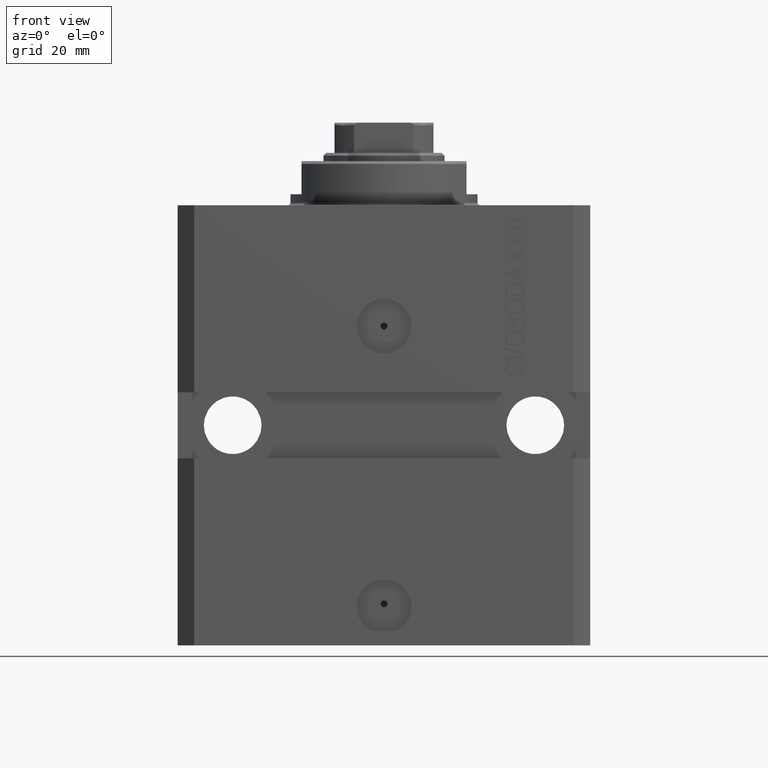
[diagram: clean part render]
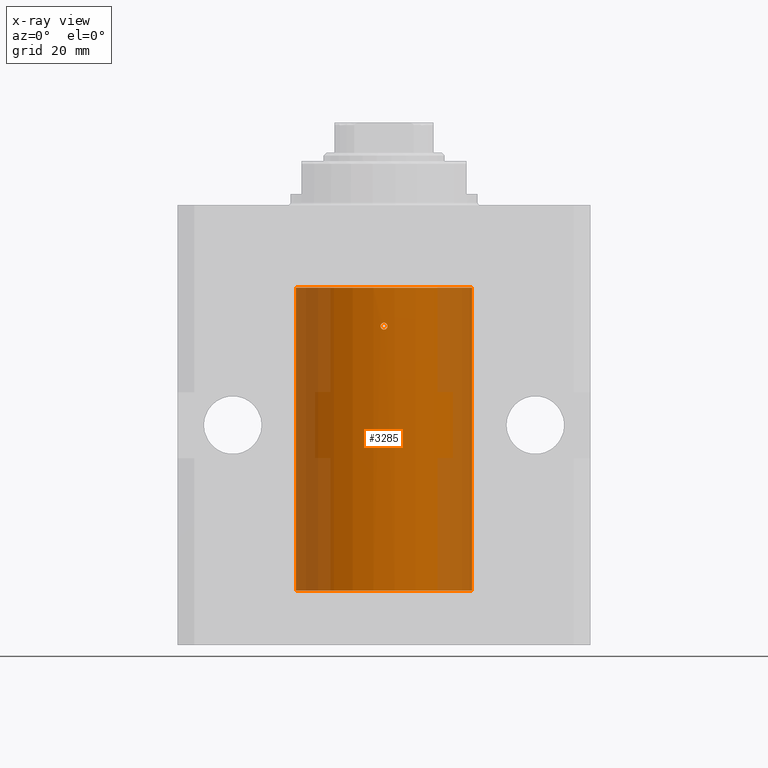
[diagram: x-ray — body ghosted, one internal face saturated and labeled with its STEP entity id]
A machine part, front view, then the same camera in x-ray: the body is ghosted and one INTERNAL B-rep face — a face not visible from any outside direction — is saturated and labeled: STEP entity #3285.
In plain terms, the highlighted cylindrical surface (partial cylindrical patch) has radius 16 mm, axis along (0, 0, 1).
Its self-contained STEP definition (entity closure, byte-faithful):
#678 = VERTEX_POINT ( 'NONE', #18303 ) ;
#1320 = CARTESIAN_POINT ( 'NONE',  ( 0.3261757727946463237, -15.99709188868944665, -22.55754407379585302 ) ) ;
#1955 = CARTESIAN_POINT ( 'NONE',  ( -15.99707459521409625, -0.3269651631532068392, -67.44291848928558863 ) ) ;
#2069 = VERTEX_POINT ( 'NONE', #34718 ) ;
#2250 = CARTESIAN_POINT ( 'NONE',  ( 0.6250000000000021094, -15.98778830858102040, -22.00000000000000000 ) ) ;
#2460 = CARTESIAN_POINT ( 'NONE',  ( 0.6250000000000021094, -15.98778830858102040, -21.91740113885281005 ) ) ;
#2680 = CARTESIAN_POINT ( 'NONE',  ( -0.5585615262064566044, -15.99067364047694184, -21.67462402876256533 ) ) ;
#2743 = VECTOR ( 'NONE', #17570, 1000.000000000000000 ) ;
#2825 = CARTESIAN_POINT ( 'NONE',  ( -15.99069874693027948, -0.5575440858643384567, -67.67382425011452085 ) ) ;
#3285 = ADVANCED_FACE ( 'NONE', ( #15114, #42932 ), #26191, .F. ) ;
#3348 = CARTESIAN_POINT ( 'NONE',  ( -16.00000000000000000, 1.643679961284177128E-16, -21.37499999999999645 ) ) ;
#4188 = DIRECTION ( 'NONE',  ( -0.000000000000000000, -0.000000000000000000, 1.000000000000000000 ) ) ;
#4446 = VERTEX_POINT ( 'NONE', #22204 ) ;
#4528 = B_SPLINE_CURVE_WITH_KNOTS ( 'NONE', 3,
 ( #2250, #2460, #29411, #33188, #9575, #22285, #18925, #39673, #32540, #12263, #9139, #2680, #36760, #22729 ),
 .UNSPECIFIED., .F., .F.,
 ( 4, 2, 2, 2, 2, 2, 4 ),
 ( 0.000000000000000000, 0.0002442776641353475663, 0.0004885553282706951326, 0.0009771106565413974210, 0.001221388320676748511, 0.001465665984812099818, 0.001954221313082809587 ),
 .UNSPECIFIED. ) ;
#4533 = CARTESIAN_POINT ( 'NONE',  ( 16.00000000000000000, 0.000000000000000000, -70.09999999999999432 ) ) ;
#4647 = CARTESIAN_POINT ( 'NONE',  ( 0.1643567559725035987, -16.00000534779674055, -22.62513690364380281 ) ) ;
#4652 = DIRECTION ( 'NONE',  ( -0.000000000000000000, -0.000000000000000000, 1.000000000000000000 ) ) ;
#4741 = CARTESIAN_POINT ( 'NONE',  ( 16.00000000000000000, 0.000000000000000000, -15.00000000000000000 ) ) ;
#5601 = AXIS2_PLACEMENT_3D ( 'NONE', #7344, #20908, #10458 ) ;
#6154 = AXIS2_PLACEMENT_3D ( 'NONE', #35403, #4652, #9263 ) ;
#6472 = LINE ( 'NONE', #34090, #2743 ) ;
#6477 = CARTESIAN_POINT ( 'NONE',  ( -16.00000000000000355, -0.1651602165840159453, -21.37500000000000000 ) ) ;
#6494 = VECTOR ( 'NONE', #4188, 1000.000000000000000 ) ;
#7236 = B_SPLINE_CURVE_WITH_KNOTS ( 'NONE', 3,
 ( #28989, #42601, #25647, #40137, #33653, #23399, #23629, #43695, #6477, #3348 ),
 .UNSPECIFIED., .F., .F.,
 ( 4, 2, 2, 2, 4 ),
 ( 0.001954221322144767369, 0.002442665739568257877, 0.002931110156991748386, 0.003419554574415238895, 0.003907998991838729404 ),
 .UNSPECIFIED. ) ;
#7344 = CARTESIAN_POINT ( 'NONE',  ( 0.000000000000000000, 0.000000000000000000, -15.00000000000000000 ) ) ;
#7736 = CIRCLE ( 'NONE', #5601, 16.00000000000000000 ) ;
#8973 = CARTESIAN_POINT ( 'NONE',  ( -16.00000000000013145, 3.685127046438747128E-13, -68.62500000000343903 ) ) ;
#9139 = CARTESIAN_POINT ( 'NONE',  ( -0.3834783201270309250, -15.99551040109984257, -21.49962188967067434 ) ) ;
#9263 = DIRECTION ( 'NONE',  ( 1.000000000000000000, 0.000000000000000000, 0.000000000000000000 ) ) ;
#9289 = CARTESIAN_POINT ( 'NONE',  ( -16.00000000000013145, 3.685127046438747128E-13, -68.62500000000343903 ) ) ;
#9337 = CARTESIAN_POINT ( 'NONE',  ( -16.00000000000000000, 1.643679961284177128E-16, -21.37499999999999645 ) ) ;
#9575 = CARTESIAN_POINT ( 'NONE',  ( 0.4995337308757450412, -15.99230423105821330, -21.61562946359011761 ) ) ;
#10086 = VECTOR ( 'NONE', #43295, 1000.000000000000000 ) ;
#10189 = EDGE_CURVE ( 'NONE', #39751, #22757, #4528, .T. ) ;
#10458 = DIRECTION ( 'NONE',  ( 1.000000000000000000, 0.000000000000000000, 0.000000000000000000 ) ) ;
#10553 = EDGE_CURVE ( 'NONE', #32946, #41729, #34010, .T. ) ;
#11484 = ORIENTED_EDGE ( 'NONE', *, *, #19938, .T. ) ;
#11544 = LINE ( 'NONE', #14206, #6494 ) ;
#11570 = CARTESIAN_POINT ( 'NONE',  ( 0.6250000000000021094, -15.98778830858102040, -22.16516021842175732 ) ) ;
#12263 = CARTESIAN_POINT ( 'NONE',  ( -0.3146006623915328371, -15.99708581762410198, -21.45377794364939206 ) ) ;
#12443 = EDGE_CURVE ( 'NONE', #22757, #39751, #38581, .T. ) ;
#12594 = ORIENTED_EDGE ( 'NONE', *, *, #21507, .T. ) ;
#12891 = ORIENTED_EDGE ( 'NONE', *, *, #13093, .F. ) ;
#13093 = EDGE_CURVE ( 'NONE', #41729, #23351, #6472, .T. ) ;
#13378 = CARTESIAN_POINT ( 'NONE',  ( -0.6250000000034292569, -15.98778830858088540, -21.99999999999968026 ) ) ;
#14206 = CARTESIAN_POINT ( 'NONE',  ( -16.00000000000000000, 1.959434878635765131E-15, -70.09999999999999432 ) ) ;
#14884 = CARTESIAN_POINT ( 'NONE',  ( 0.5570815292660692419, -15.99071604712191963, -22.32696513381955583 ) ) ;
#15114 = FACE_BOUND ( 'NONE', #31834, .T. ) ;
#15156 = EDGE_CURVE ( 'NONE', #4446, #2069, #41658, .T. ) ;
#16396 = CARTESIAN_POINT ( 'NONE',  ( -16.00000000000000000, -0.1651602165840247993, -67.37500000000001421 ) ) ;
#17416 = EDGE_LOOP ( 'NONE', ( #21427, #12594, #22743, #20488, #41515, #11484, #26797, #12891 ) ) ;
#17570 = DIRECTION ( 'NONE',  ( -0.000000000000000000, -0.000000000000000000, 1.000000000000000000 ) ) ;
#18303 = CARTESIAN_POINT ( 'NONE',  ( -16.00000000000000000, 1.959434878635765131E-15, -15.00000000000000000 ) ) ;
#18451 = CARTESIAN_POINT ( 'NONE',  ( -16.00000000000000000, 1.959434878635765131E-15, -70.09999999999999432 ) ) ;
#18925 = CARTESIAN_POINT ( 'NONE',  ( 0.1632985437550950880, -15.99999773299415651, -21.37505803535338700 ) ) ;
#19938 = EDGE_CURVE ( 'NONE', #27938, #678, #11544, .T. ) ;
#20488 = ORIENTED_EDGE ( 'NONE', *, *, #15156, .T. ) ;
#20876 = CARTESIAN_POINT ( 'NONE',  ( 0.6250000000000021094, -15.98778830858102040, -22.00000000000000000 ) ) ;
#20908 = DIRECTION ( 'NONE',  ( 0.000000000000000000, 0.000000000000000000, 1.000000000000000000 ) ) ;
#21427 = ORIENTED_EDGE ( 'NONE', *, *, #10553, .F. ) ;
#21507 = EDGE_CURVE ( 'NONE', #32946, #34211, #38842, .T. ) ;
#21570 = CARTESIAN_POINT ( 'NONE',  ( -0.5574097071831423111, -15.99070247867880745, -22.32631147718825915 ) ) ;
#22204 = CARTESIAN_POINT ( 'NONE',  ( -16.00000000000000000, -9.346608026143465119E-15, -67.37500000000000000 ) ) ;
#22285 = CARTESIAN_POINT ( 'NONE',  ( 0.3265185412710907009, -15.99708410649345147, -21.44267668954472228 ) ) ;
#22729 = CARTESIAN_POINT ( 'NONE',  ( -0.6250000000034292569, -15.98778830858088540, -21.99999999999968026 ) ) ;
#22743 = ORIENTED_EDGE ( 'NONE', *, *, #22949, .T. ) ;
#22757 = VERTEX_POINT ( 'NONE', #13378 ) ;
#22949 = EDGE_CURVE ( 'NONE', #34211, #4446, #34987, .T. ) ;
#23351 = VERTEX_POINT ( 'NONE', #4741 ) ;
#23399 = CARTESIAN_POINT ( 'NONE',  ( -15.98778295664475557, -0.6251369050462041166, -21.83564325457866317 ) ) ;
#23629 = CARTESIAN_POINT ( 'NONE',  ( -15.99069874693028304, -0.5575440858643239128, -21.67382425011450309 ) ) ;
#25601 = ORIENTED_EDGE ( 'NONE', *, *, #10189, .T. ) ;
#25647 = CARTESIAN_POINT ( 'NONE',  ( -15.99708815688950381, -0.3263115027449041694, -22.55740969198224022 ) ) ;
#26191 = CYLINDRICAL_SURFACE ( 'NONE', #6154, 16.00000000000000000 ) ;
#26241 = DIRECTION ( 'NONE',  ( 0.000000000000000000, 0.000000000000000000, 1.000000000000000000 ) ) ;
#26797 = ORIENTED_EDGE ( 'NONE', *, *, #33632, .T. ) ;
#27938 = VERTEX_POINT ( 'NONE', #9337 ) ;
#28989 = CARTESIAN_POINT ( 'NONE',  ( -16.00000000000013145, 3.685127034031037939E-13, -22.62500000000341771 ) ) ;
#29150 = CARTESIAN_POINT ( 'NONE',  ( 0.6250000000000021094, -15.98778830858102040, -22.00000000000000000 ) ) ;
#29411 = CARTESIAN_POINT ( 'NONE',  ( 0.6087347191286167636, -15.98844670280648650, -21.83635021790516717 ) ) ;
#29572 = CARTESIAN_POINT ( 'NONE',  ( 0.000000000000000000, 0.000000000000000000, -70.09999999999999432 ) ) ;
#31822 = CARTESIAN_POINT ( 'NONE',  ( -0.6250000000034292569, -15.98778830858088540, -21.99999999999968026 ) ) ;
#31834 = EDGE_LOOP ( 'NONE', ( #25601, #41395 ) ) ;
#32462 = CARTESIAN_POINT ( 'NONE',  ( -15.99071965633095793, -0.5569502390237154321, -68.32709508218684391 ) ) ;
#32540 = CARTESIAN_POINT ( 'NONE',  ( -0.1632473553834393187, -15.99934619083441945, -21.39116306568885761 ) ) ;
#32683 = CARTESIAN_POINT ( 'NONE',  ( -15.99708815688950381, -0.3263115027449093875, -68.55740969198227219 ) ) ;
#32927 = DIRECTION ( 'NONE',  ( 1.000000000000000000, 0.000000000000000000, 0.000000000000000000 ) ) ;
#32946 = VERTEX_POINT ( 'NONE', #35387 ) ;
#33020 = CARTESIAN_POINT ( 'NONE',  ( -16.00000000000000000, 1.959434878635765131E-15, -70.09999999999999432 ) ) ;
#33188 = CARTESIAN_POINT ( 'NONE',  ( 0.5459766766732054855, -15.99071278571675236, -21.68496241814481351 ) ) ;
#33348 = CARTESIAN_POINT ( 'NONE',  ( -15.98779367741636648, -0.6248626626677356022, -68.16539631985038739 ) ) ;
#33632 = EDGE_CURVE ( 'NONE', #678, #23351, #7736, .T. ) ;
#33653 = CARTESIAN_POINT ( 'NONE',  ( -15.98779367741636648, -0.6248626626677216134, -22.16539631985037317 ) ) ;
#34010 = CIRCLE ( 'NONE', #39671, 16.00000000000000000 ) ;
#34090 = CARTESIAN_POINT ( 'NONE',  ( 16.00000000000000000, 0.000000000000000000, -70.09999999999999432 ) ) ;
#34211 = VERTEX_POINT ( 'NONE', #8973 ) ;
#34718 = CARTESIAN_POINT ( 'NONE',  ( -16.00000000000013145, 3.685127034031037939E-13, -22.62500000000341771 ) ) ;
#34965 = DIRECTION ( 'NONE',  ( -0.000000000000000000, -0.000000000000000000, 1.000000000000000000 ) ) ;
#34987 = B_SPLINE_CURVE_WITH_KNOTS ( 'NONE', 3,
 ( #9289, #35822, #32683, #32462, #33348, #36258, #2825, #1955, #16396, #42732 ),
 .UNSPECIFIED., .F., .F.,
 ( 4, 2, 2, 2, 4 ),
 ( 0.001954221322144763465, 0.002442665739568257010, 0.002931110156991750121, 0.003419554574415243665, 0.003907998991838737210 ),
 .UNSPECIFIED. ) ;
#35175 = CARTESIAN_POINT ( 'NONE',  ( -0.1653963197027899790, -15.99999463531743693, -22.62486266407902491 ) ) ;
#35387 = CARTESIAN_POINT ( 'NONE',  ( -16.00000000000000000, 1.959434878635765131E-15, -70.09999999999999432 ) ) ;
#35403 = CARTESIAN_POINT ( 'NONE',  ( 0.000000000000000000, 0.000000000000000000, -70.09999999999999432 ) ) ;
#35822 = CARTESIAN_POINT ( 'NONE',  ( -16.00000000000000711, -0.1631344205875859821, -68.62500000000014211 ) ) ;
#36258 = CARTESIAN_POINT ( 'NONE',  ( -15.98778295664474491, -0.6251369050462197707, -67.83564325457867028 ) ) ;
#36760 = CARTESIAN_POINT ( 'NONE',  ( -0.6249999999998588907, -15.98778830858102395, -21.83682853524270584 ) ) ;
#38529 = CARTESIAN_POINT ( 'NONE',  ( -0.6250000000001376677, -15.98778830858101685, -22.16313442089298746 ) ) ;
#38581 = B_SPLINE_CURVE_WITH_KNOTS ( 'NONE', 3,
 ( #31822, #38529, #21570, #42106, #35175, #4647, #1320, #14884, #11570, #29150 ),
 .UNSPECIFIED., .F., .F.,
 ( 4, 2, 2, 2, 4 ),
 ( 0.001954221313082809587, 0.002442665727494955450, 0.002931110141907101313, 0.003419554556319247176, 0.003907998970731393039 ),
 .UNSPECIFIED. ) ;
#38842 = LINE ( 'NONE', #33020, #10086 ) ;
#39234 = EDGE_CURVE ( 'NONE', #2069, #27938, #7236, .T. ) ;
#39671 = AXIS2_PLACEMENT_3D ( 'NONE', #29572, #26241, #32927 ) ;
#39673 = CARTESIAN_POINT ( 'NONE',  ( -0.08131586293866366333, -16.00000113118705514, -21.37497104160945582 ) ) ;
#39751 = VERTEX_POINT ( 'NONE', #20876 ) ;
#40137 = CARTESIAN_POINT ( 'NONE',  ( -15.99071965633096148, -0.5569502390237042189, -22.32709508218684036 ) ) ;
#41246 = VECTOR ( 'NONE', #34965, 1000.000000000000000 ) ;
#41395 = ORIENTED_EDGE ( 'NONE', *, *, #12443, .T. ) ;
#41515 = ORIENTED_EDGE ( 'NONE', *, *, #39234, .T. ) ;
#41658 = LINE ( 'NONE', #18451, #41246 ) ;
#41729 = VERTEX_POINT ( 'NONE', #4533 ) ;
#42106 = CARTESIAN_POINT ( 'NONE',  ( -0.3270951065626575005, -15.99707098610709011, -22.55695022494791857 ) ) ;
#42601 = CARTESIAN_POINT ( 'NONE',  ( -16.00000000000001066, -0.1631344205875843723, -22.62500000000015632 ) ) ;
#42732 = CARTESIAN_POINT ( 'NONE',  ( -16.00000000000000000, -9.346608026143465119E-15, -67.37500000000000000 ) ) ;
#42932 = FACE_OUTER_BOUND ( 'NONE', #17416, .T. ) ;
#43295 = DIRECTION ( 'NONE',  ( -0.000000000000000000, -0.000000000000000000, 1.000000000000000000 ) ) ;
#43695 = CARTESIAN_POINT ( 'NONE',  ( -15.99707459521409625, -0.3269651631531955704, -21.44291848928558863 ) ) ;